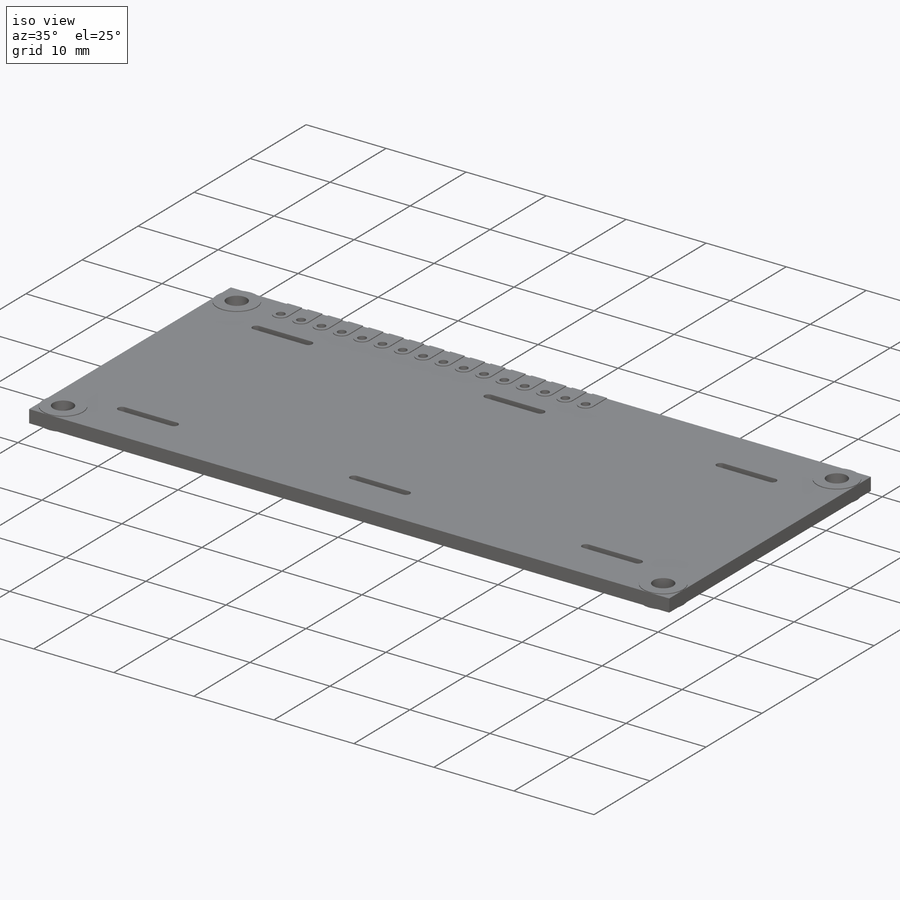
[diagram: iso view]
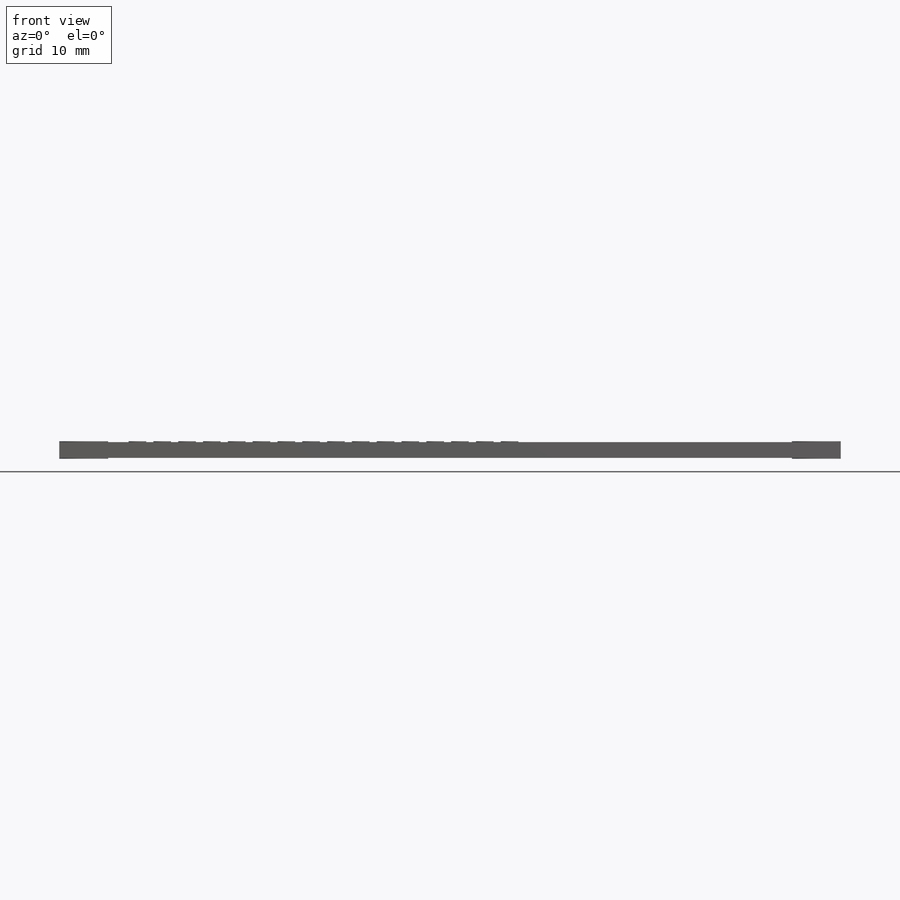
[diagram: front view]
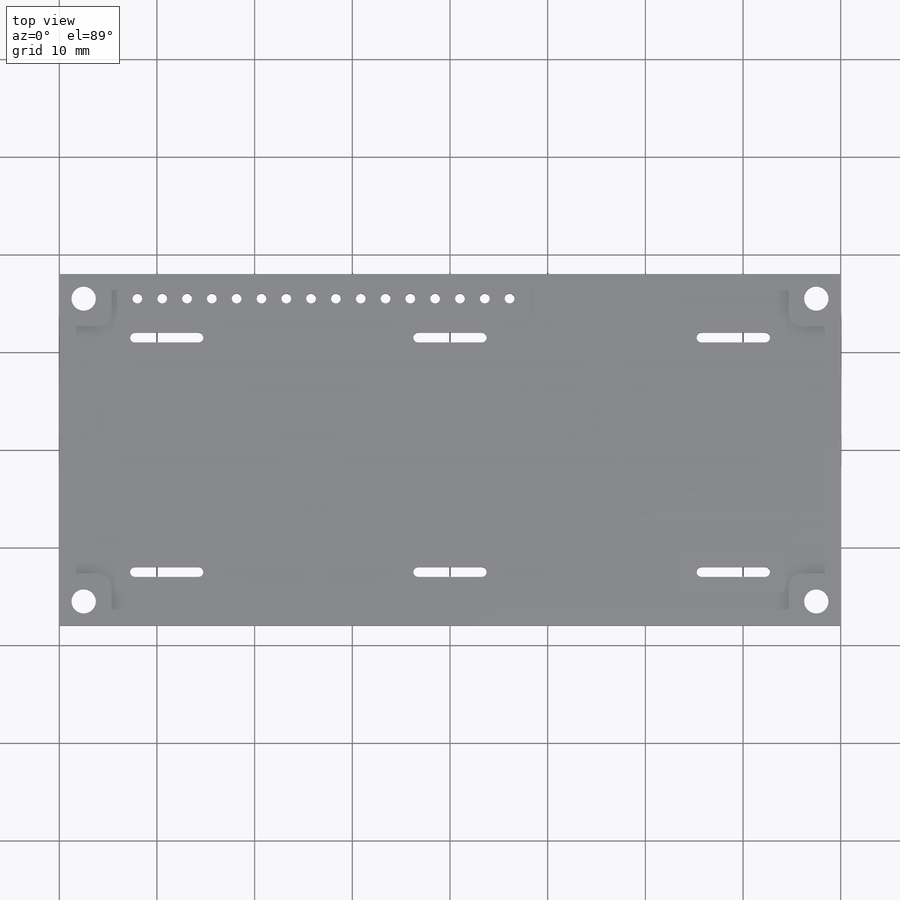
[diagram: top view]
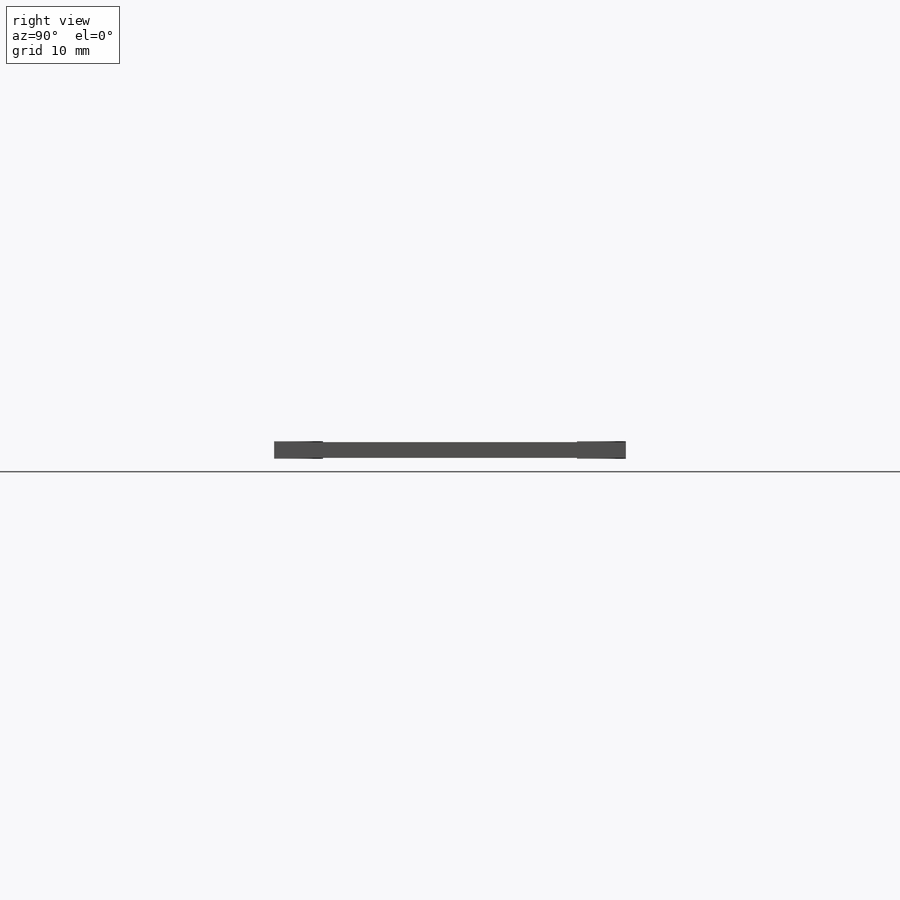
[diagram: right view]
SOLIDWORKS PART (.sldprt)
format: sldprt  version: not decoded by parser v0  size: 610,304 bytes
history: native  units: mm
features: sketch x4, extrude x4, material x1, pattern_linear x1 (+11 scaffold rows collapsed)
feature tree (21):
  scaffold x11  (default folders/planes/origin — collapsed)
  material  "Material <not specified>"
  sketch  "Sketch1"  dims[c1.D5=2.5mm c1.D6=1.0mm c1.D1=36.0mm c1.D2=80.0mm c1.D3=2.5mm c1.D4=2.5mm c2.D5=31.0mm c2.D7=8.0mm c2.D9=2.54mm c2.D10=1.0mm c2.D11=6.5mm c2.D12=5.0mm c2.D16=24.0mm c2.D17=55.0mm c2.D8=16.0 c2.D13=2.0 c2.D14=2.0 c2.D15=2.0]
  extrude  "Boss-Extrude1"  Depth=1.6mm
  sketch  "Sketch2"  dims[c1.D1=1.8mm c1.D2=1.8mm c2.D1=1.8mm c2.D2=1.25mm c2.D3=1.25mm]
  extrude  "Boss-Extrude2"  Depth=0.1mm
  pattern_linear  "LPattern1"  Count1=16 Count2=1 Spacing1=2.54mm Spacing2=10mm
  sketch  "Sketch3"  dims[D1=1.25mm]
  extrude  "Boss-Extrude3"  Depth=0.1mm
  sketch  "Sketch4"  dims[D1=1.25mm]
  extrude  "Boss-Extrude4"  Depth=0.1mm
decode coverage: 9 of 9 modeling features carry decoded parameters
note: suppression state not decoded; provenance and decode notes live in map.json
